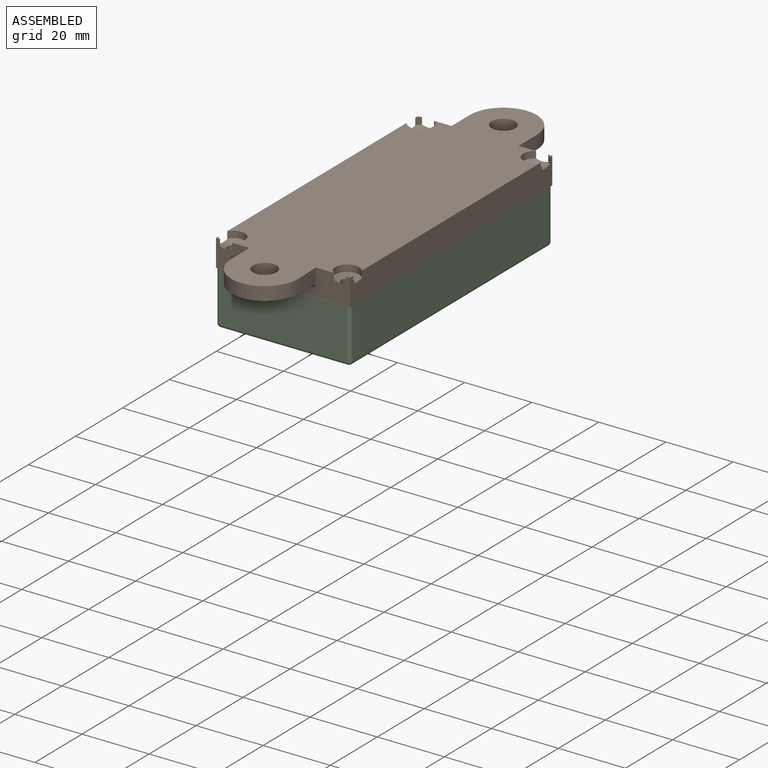
[diagram: assembled view]
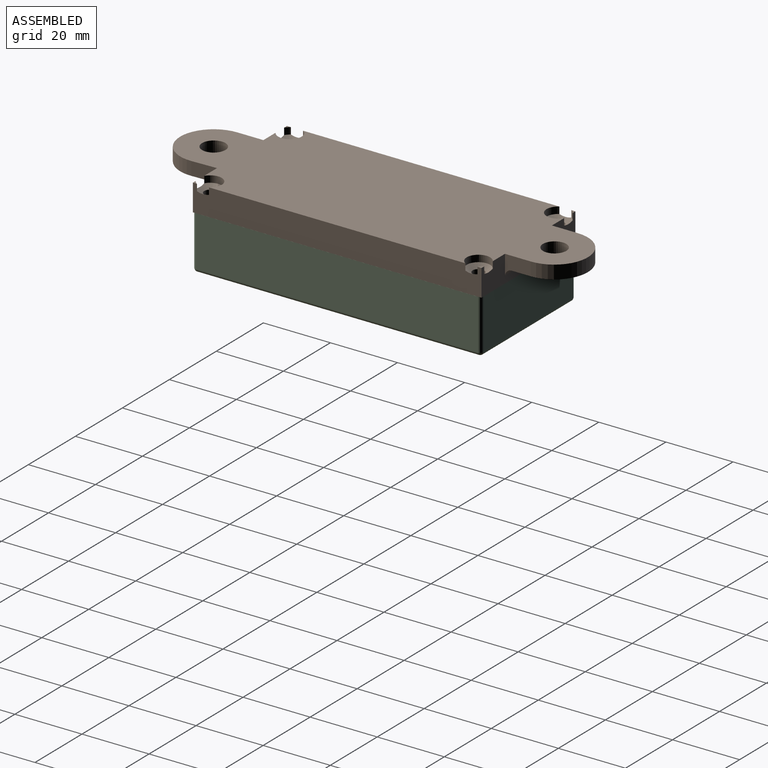
[diagram: assembled view, second angle]
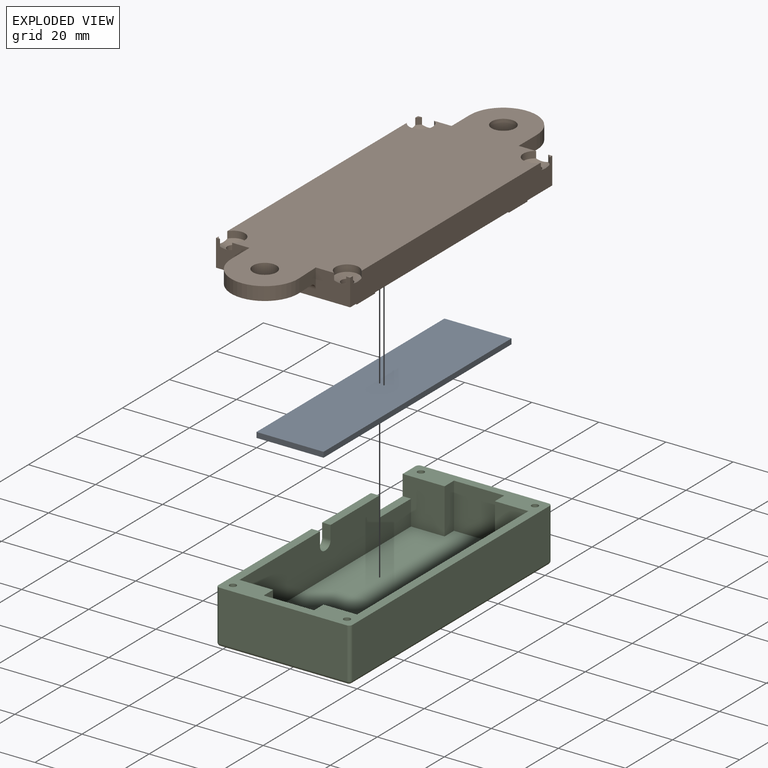
[diagram: exploded view]
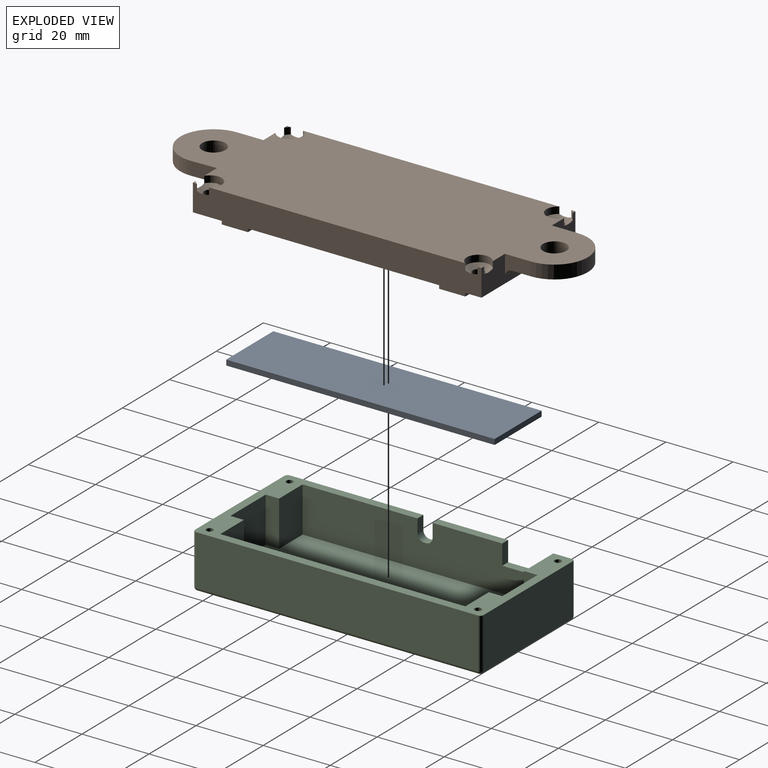
[diagram: exploded view, second angle]
ASSEMBLY  parts=3 mates=2
PART A: 6 faces, bbox 20x1.6x80 mm
  f0: plane 20x1.6mm, normal (0,0,1), area 32mm2, adj f1,f3,f4,f5
  f1: plane 80x1.6mm, normal (-1,0,0), area 128mm2, adj f0,f2,f4,f5
  f2: plane 20x1.6mm, normal (0,0,-1), area 32mm2, adj f1,f3,f4,f5
  f3: plane 80x1.6mm, normal (1,0,0), area 128mm2, adj f0,f2,f4,f5
  f4: plane 80x20mm, normal (0,-1,0), area 1600mm2, adj f0,f1,f2,f3
  f5: plane 80x20mm, normal (0,1,0), area 1600mm2, adj f0,f1,f2,f3
PART B: 72 faces, bbox 41.3x10.8x121.8 mm
  f0: plane 40.31x8.31mm, normal (0,0,1), area 185.7mm2, adj f7,f9,f12,f13,f18,f19,f34,f35
  f1: plane 15x5.5mm, normal (1,0,0), area 82.5mm2, adj f2,f3,f18,f56
  f2: plane 73x35mm, normal (0,-1,0), area 2459mm2, adj f1,f3,f4,f5,f6,f41,f42,f45
  f3: plane 32x5.5mm, normal (0,0,1), area 145.2mm2, adj f1,f2,f18,f20,f22,f23,f52
  f4: plane 57x5.5mm, normal (-1,0,0), area 313.5mm2, adj f2,f18,f45,f51
  f5: plane 29x5.5mm, normal (0,0,-1), area 128.8mm2, adj f2,f18,f24,f25,f27,f42,f48
  f6: plane 42x5.5mm, normal (1,0,0), area 231mm2, adj f2,f18,f41,f58
  f7: plane 86x8mm, normal (-1,0,0), area 672.2mm2, adj f0,f8,f11,f12,f18,f19,f28,f29
  f8: plane 40x8mm, normal (0,0,-1), area 184.2mm2, adj f7,f9,f10,f11,f12,f18,f28,f29
  f9: plane 86x8mm, normal (1,0,0), area 672.2mm2, adj f0,f8,f10,f12,f13,f18,f31,f32
  f10: plane 1.2x1.2mm, normal (0,1,0), area 0.6mm2, adj f8,f9,f32
  f11: plane 1.2x1.2mm, normal (0,1,0), area 0.6mm2, adj f7,f8,f30
  f12: plane 121.53x40mm, normal (0,1,0), area 3840.2mm2, adj f0,f7,f8,f9,f28,f31,f34,f38
  f13: plane 1.2x1.2mm, normal (0,1,0), area 0.6mm2, adj f0,f9,f35
  f14: cylinder r=1.75mm len=4.95mm, axis (0,-1,0), area 54.4mm2, adj f18,f39
  f15: cylinder r=1.75mm len=4.95mm, axis (0,-1,0), area 54.4mm2, adj f18,f36
  f16: cylinder r=1.75mm len=4.95mm, axis (0,-1,0), area 54.4mm2, adj f18,f33
  f17: cylinder r=1.75mm len=4.95mm, axis (0,-1,0), area 54.4mm2, adj f18,f29
  f18: plane 86x40mm, normal (0,-1,0), area 690.6mm2, adj f0,f1,f3,f4,f5,f6,f7,f8
  f19: plane 1.2x1.2mm, normal (0,1,0), area 0.6mm2, adj f0,f7,f37
  f20: plane 4x1.5mm, normal (1,0,0), area 6mm2, adj f3,f18,f21,f23
  f21: plane 20.5x1.5mm, normal (0,0,1), area 30.8mm2, adj f18,f20,f22,f23
  f22: plane 4x1.5mm, normal (-1,0,0), area 6mm2, adj f3,f18,f21,f23
  f23: plane 20.5x4mm, normal (0,-1,0), area 82mm2, adj f3,f20,f21,f22
  f24: plane 4x1.5mm, normal (1,0,0), area 6mm2, adj f5,f18,f26,f27
  f25: plane 4x1.5mm, normal (-1,0,0), area 6mm2, adj f5,f18,f26,f27
  f26: plane 20.5x1.5mm, normal (0,0,-1), area 30.8mm2, adj f18,f24,f25,f27
  f27: plane 20.5x4mm, normal (0,-1,0), area 82mm2, adj f5,f24,f25,f26
  f28: cylinder r=3.5mm len=6.5mm, axis (0,1,0), area 25.4mm2, adj f7,f8,f12,f29
  f29: cone r=0mm half-angle=59deg, axis (0,1,0), area 30.8mm2, adj f7,f8,f17,f28,f30
  f30: cylinder r=3.5mm len=2mm, axis (0,1,0), area 3.4mm2, adj f7,f8,f11,f29
  f31: cylinder r=3.5mm len=6.5mm, axis (0,1,0), area 25.4mm2, adj f8,f9,f12,f33
  f32: cylinder r=3.5mm len=2mm, axis (0,1,0), area 3.4mm2, adj f8,f9,f10,f33
  f33: cone r=0mm half-angle=59deg, axis (0,1,0), area 30.8mm2, adj f8,f9,f16,f31,f32
  f34: cylinder r=3.5mm len=6.5mm, axis (0,1,0), area 25.4mm2, adj f0,f9,f12,f36
  f35: cylinder r=3.5mm len=2mm, axis (0,1,0), area 3.4mm2, adj f0,f9,f13,f36
  f36: cone r=0mm half-angle=59deg, axis (0,1,0), area 31.2mm2, adj f0,f9,f15,f34,f35
  f37: cylinder r=3.5mm len=2mm, axis (0,1,0), area 3.4mm2, adj f0,f7,f19,f39
  f38: cylinder r=3.5mm len=6.5mm, axis (0,1,0), area 25.4mm2, adj f0,f7,f12,f39
  f39: cone r=0mm half-angle=59deg, axis (0,1,0), area 31.2mm2, adj f0,f7,f14,f37,f38
  f40: plane 7.8x2.5mm, normal (-1,0,0), area 19.5mm2, adj f18,f41,f43,f44
  f41: plane 8x3mm, normal (0,0,-1), area 23.5mm2, adj f2,f6,f18,f40,f42,f44
  f42: plane 8x8mm, normal (1,0,0), area 63.5mm2, adj f2,f5,f18,f41,f43,f44
  f43: plane 2.8x2.5mm, normal (0,0,1), area 7mm2, adj f18,f40,f42,f44
  f44: plane 7.8x2.8mm, normal (0,-1,0), area 21.8mm2, adj f40,f41,f42,f43
  f45: plane 8x3mm, normal (0,0,-1), area 23.5mm2, adj f2,f4,f18,f46,f48,f49
  f46: plane 7.8x2.5mm, normal (1,0,0), area 19.5mm2, adj f18,f45,f47,f49
  f47: plane 2.8x2.5mm, normal (0,0,1), area 7mm2, adj f18,f46,f48,f49
  f48: plane 8x8mm, normal (-1,0,0), area 63.5mm2, adj f2,f5,f18,f45,f47,f49
  f49: plane 7.8x2.8mm, normal (0,-1,0), area 21.8mm2, adj f45,f46,f47,f48
  f50: plane 7.8x2.5mm, normal (1,0,0), area 19.5mm2, adj f18,f51,f53,f54
  f51: plane 8x3mm, normal (0,0,1), area 23.5mm2, adj f2,f4,f18,f50,f52,f54
  f52: plane 8x8mm, normal (-1,0,0), area 63.5mm2, adj f2,f3,f18,f51,f53,f54
  f53: plane 2.8x2.5mm, normal (0,0,-1), area 7mm2, adj f18,f50,f52,f54
  f54: plane 7.8x2.8mm, normal (0,-1,0), area 21.8mm2, adj f50,f51,f52,f53
  f55: plane 8x2.5mm, normal (-1,0,0), area 20mm2, adj f18,f56,f58,f59
  f56: plane 8x3mm, normal (0,0,-1), area 23.5mm2, adj f1,f2,f18,f55,f57,f59
  f57: plane 8x8mm, normal (1,0,0), area 64mm2, adj f2,f56,f58,f59
  f58: plane 8x3mm, normal (0,0,1), area 23.5mm2, adj f2,f6,f18,f55,f57,f59
  f59: plane 8x2.8mm, normal (0,-1,0), area 22.4mm2, adj f55,f56,f57,f58
  f60: plane 7.49x6.03mm, normal (1,0,-0.03), area 30.7mm2, adj f0,f12,f61,f63,f70
  f61: plane 20x15.8mm, normal (0,-1,0), area 234.1mm2, adj f60,f62,f63,f69,f70
  f62: plane 7.8x6mm, normal (-1,0,0), area 32.1mm2, adj f0,f12,f61,f63,f70
  f63: cylinder r=10mm len=20mm, axis (0,1,0), area 127mm2, adj f12,f60,f61,f62
  f64: cylinder r=10mm len=20mm, axis (0,1,0), area 125.7mm2, adj f12,f65,f66,f67
  f65: plane 7.73x6mm, normal (-1,0,0), area 31.8mm2, adj f8,f12,f64,f67,f71
  f66: plane 7.73x6mm, normal (1,0,0), area 31.8mm2, adj f8,f12,f64,f67,f71
  f67: plane 20x15.73mm, normal (0,-1,0), area 233.2mm2, adj f64,f65,f66,f68,f71
  f68: cylinder r=3.5mm len=7mm, axis (0,1,0), area 88mm2, adj f12,f67
  f69: cylinder r=3.5mm len=7mm, axis (0,1,0), area 88mm2, adj f12,f61
  f70: cylinder r=2mm len=19.81mm, axis (-1,0,0), area 62.1mm2, adj f0,f60,f61,f62
  f71: cylinder r=2mm len=20mm, axis (1,0,0), area 62.8mm2, adj f8,f65,f66,f67
PART C: 47 faces, bbox 40x16x86 mm
  f0: plane 86x40mm, normal (0,1,0), area 654.7mm2, adj f1,f2,f3,f4,f6,f7,f8,f9
  f1: plane 15x13.5mm, normal (0,0,1), area 202.5mm2, adj f0,f11,f17,f19
  f2: plane 15x13.5mm, normal (0,0,-1), area 202.5mm2, adj f0,f11,f13,f15
  f3: plane 73x13.5mm, normal (1,0,0), area 879.2mm2, adj f0,f5,f11,f14,f18,f20,f21,f22
  f4: plane 73x13.5mm, normal (-1,0,0), area 985.5mm2, adj f0,f11,f12,f16
  f5: plane 20.75x2.5mm, normal (0,1,0), area 51.9mm2, adj f3,f7,f20,f24
  f6: plane 38x15mm, normal (0,0,1), area 570mm2, adj f0,f37,f43,f46
  f7: plane 84x15mm, normal (-1,0,0), area 1153.7mm2, adj f0,f5,f18,f20,f21,f22,f23,f24
  f8: plane 38x15mm, normal (0,0,-1), area 570mm2, adj f0,f35,f39,f40
  f9: plane 84x15mm, normal (1,0,0), area 1260mm2, adj f0,f35,f37,f38
  f10: plane 84x38mm, normal (0,-1,0), area 3192mm2, adj f38,f39,f43,f44
  f11: plane 81x35mm, normal (0,1,0), area 2675mm2, adj f1,f2,f3,f4,f12,f13,f14,f15
  f12: plane 13.5x10mm, normal (0,0,-1), area 135mm2, adj f0,f4,f11,f13
  f13: plane 13.5x4mm, normal (-1,0,0), area 54mm2, adj f0,f2,f11,f12
  f14: plane 13.5x10mm, normal (0,0,-1), area 135mm2, adj f0,f3,f11,f15
  f15: plane 13.5x4mm, normal (1,0,0), area 54mm2, adj f0,f2,f11,f14
  f16: plane 13.5x10mm, normal (0,0,1), area 135mm2, adj f0,f4,f11,f17
  f17: plane 13.5x4mm, normal (-1,0,0), area 54mm2, adj f0,f1,f11,f16
  f18: plane 13.5x12.5mm, normal (0,0,1), area 150mm2, adj f0,f3,f7,f11,f19,f21
  f19: plane 13.5x4mm, normal (1,0,0), area 54mm2, adj f0,f1,f11,f18
  f20: plane 6x2.5mm, normal (0,0,-1), area 15mm2, adj f3,f5,f7,f21
  f21: plane 13.5x2.5mm, normal (0,1,0), area 33.8mm2, adj f3,f7,f18,f20
  f22: plane 4x2.5mm, normal (0,0,-1), area 10mm2, adj f0,f3,f7,f25
  f23: plane 2.5x0.5mm, normal (0,1,0), area 1.3mm2, adj f3,f7,f25,f26
  f24: plane 4x2.5mm, normal (0,0,1), area 10mm2, adj f3,f5,f7,f26
  f25: cylinder r=2mm len=2.5mm, axis (-1,0,0), area 7.9mm2, adj f3,f7,f22,f23
  f26: cylinder r=2mm len=2.5mm, axis (1,0,0), area 7.9mm2, adj f3,f7,f23,f24
  f27: cone r=0mm half-angle=59deg, axis (0,1,0), area 3.7mm2, adj f28
  f28: cylinder r=1mm len=12mm, axis (0,1,0), area 75.4mm2, adj f0,f27
  f29: cone r=0mm half-angle=59deg, axis (0,1,0), area 3.7mm2, adj f30
  f30: cylinder r=1mm len=12mm, axis (0,1,0), area 75.4mm2, adj f0,f29
  f31: cone r=0mm half-angle=59deg, axis (0,1,0), area 3.7mm2, adj f32
  f32: cylinder r=1mm len=12mm, axis (0,1,0), area 75.4mm2, adj f0,f31
  f33: cone r=0mm half-angle=59deg, axis (0,1,0), area 3.7mm2, adj f34
  f34: cylinder r=1mm len=12mm, axis (0,1,0), area 75.4mm2, adj f0,f33
  f35: cylinder r=1mm len=15mm, axis (0,-1,0), area 23.6mm2, adj f0,f8,f9,f36
  f36: sphere r=1mm, area 1.6mm2, adj f35,f38,f39
  f37: cylinder r=1mm len=15mm, axis (0,1,0), area 23.6mm2, adj f0,f6,f9,f41
  f38: cylinder r=1mm len=84mm, axis (0,0,-1), area 131.9mm2, adj f9,f10,f36,f41
  f39: cylinder r=1mm len=38mm, axis (-1,0,0), area 59.7mm2, adj f8,f10,f36,f42
  f40: cylinder r=1mm len=15mm, axis (0,1,0), area 23.6mm2, adj f0,f7,f8,f42
  f41: sphere r=1mm, area 1.6mm2, adj f37,f38,f43
  f42: sphere r=1mm, area 1.6mm2, adj f39,f40,f44
  f43: cylinder r=1mm len=38mm, axis (1,0,0), area 59.7mm2, adj f6,f10,f41,f45
  f44: cylinder r=1mm len=84mm, axis (0,0,1), area 131.9mm2, adj f7,f10,f42,f45
  f45: sphere r=1mm, area 1.6mm2, adj f43,f44,f46
  f46: cylinder r=1mm len=15mm, axis (0,-1,0), area 23.6mm2, adj f0,f6,f7,f45
PLACE A rot(axis=(0,-0.71,0.71),180deg) t=(0,0,0)mm
PLACE B rot(axis=(1,0,0),90deg) t=(-0.01,0.06,0)mm
PLACE C rot(axis=(1,0,0),90deg) t=(0,0,0)mm
MATE fastened B.f18 <-> A.f5  axis (0,0,-1) through (0,0,0)mm
MATE fastened C.f0 <-> A.f5  axis (0,0,-1) through (0,0,0)mm
